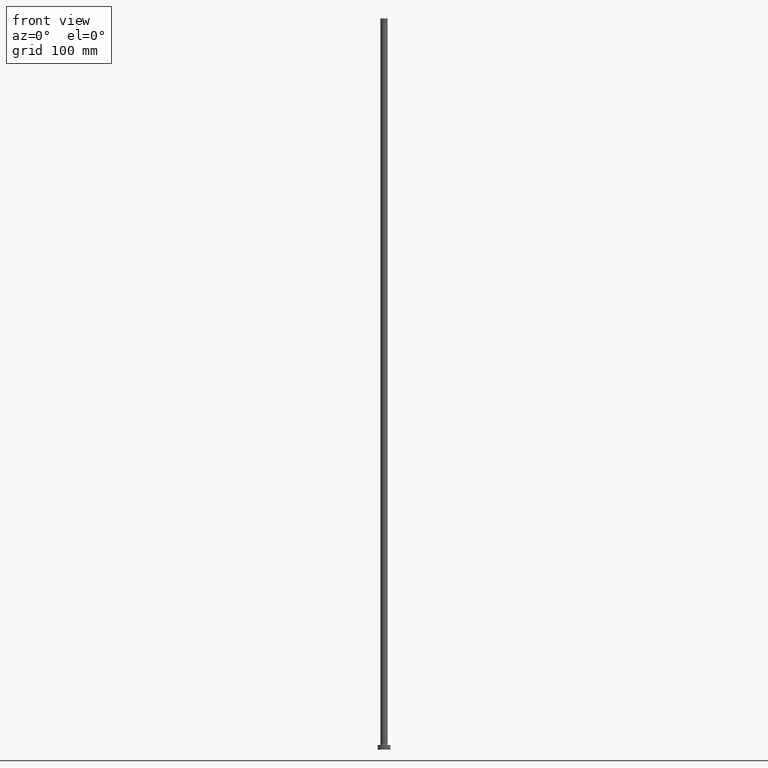
[diagram: clean part render]
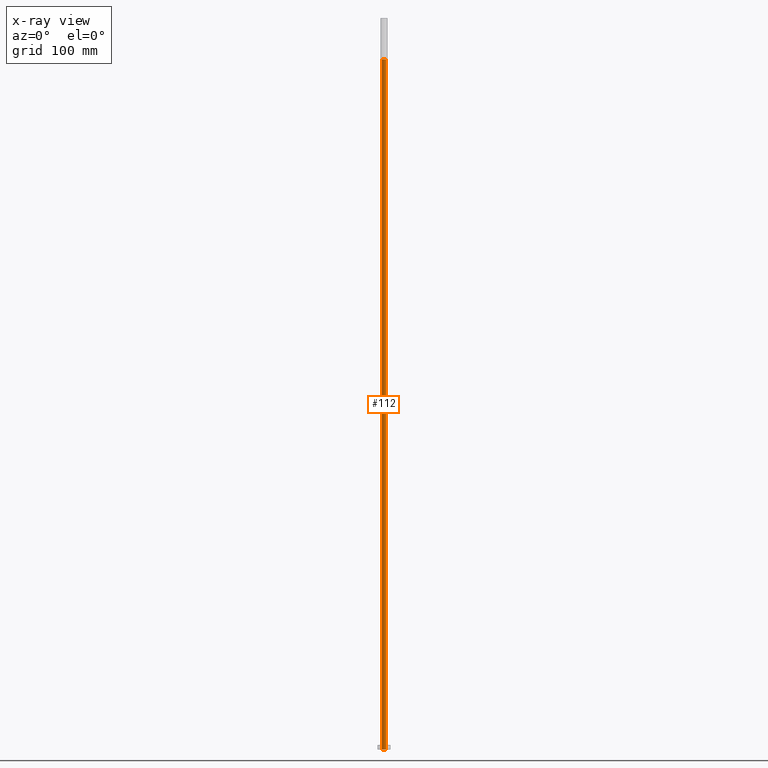
[diagram: x-ray — body ghosted, one internal face saturated and labeled with its STEP entity id]
A machine part, front view, then the same camera in x-ray: the body is ghosted and one INTERNAL B-rep face — a face not visible from any outside direction — is saturated and labeled: STEP entity #112.
In plain terms, the highlighted cylindrical surface (edge-blend (fillet) strip) has radius 2.15 mm, axis along (0, 0, -1).
Its self-contained STEP definition (entity closure, byte-faithful):
#3 = AXIS2_PLACEMENT_3D ( 'NONE', #212, #285, #249 ) ;
#5 = CIRCLE ( 'NONE', #53, 2.149999999999999911 ) ;
#20 = LINE ( 'NONE', #431, #250 ) ;
#28 = VERTEX_POINT ( 'NONE', #207 ) ;
#39 = DIRECTION ( 'NONE',  ( 0.000000000000000000, 0.000000000000000000, -1.000000000000000000 ) ) ;
#42 = CARTESIAN_POINT ( 'NONE',  ( 0.000000000000000000, 0.000000000000000000, 755.0000000000000000 ) ) ;
#47 = DIRECTION ( 'NONE',  ( -1.000000000000000000, 0.000000000000000000, 0.000000000000000000 ) ) ;
#48 = ORIENTED_EDGE ( 'NONE', *, *, #180, .T. ) ;
#53 = AXIS2_PLACEMENT_3D ( 'NONE', #42, #392, #358 ) ;
#102 = DIRECTION ( 'NONE',  ( 0.000000000000000000, 0.000000000000000000, -1.000000000000000000 ) ) ;
#105 = CARTESIAN_POINT ( 'NONE',  ( 2.149999999999999911, 2.632990618166809235E-16, 755.0000000000000000 ) ) ;
#112 = ADVANCED_FACE ( 'NONE', ( #354 ), #146, .F. ) ;
#117 = DIRECTION ( 'NONE',  ( 0.000000000000000000, 0.000000000000000000, -1.000000000000000000 ) ) ;
#121 = ORIENTED_EDGE ( 'NONE', *, *, #277, .F. ) ;
#135 = EDGE_LOOP ( 'NONE', ( #457, #189, #48, #121 ) ) ;
#140 = CARTESIAN_POINT ( 'NONE',  ( -2.149999999999999911, 0.000000000000000000, 755.0000000000000000 ) ) ;
#146 = CYLINDRICAL_SURFACE ( 'NONE', #281, 2.149999999999999911 ) ;
#159 = VECTOR ( 'NONE', #117, 1000.000000000000000 ) ;
#164 = VERTEX_POINT ( 'NONE', #105 ) ;
#180 = EDGE_CURVE ( 'NONE', #28, #230, #197, .T. ) ;
#187 = EDGE_CURVE ( 'NONE', #209, #164, #5, .T. ) ;
#189 = ORIENTED_EDGE ( 'NONE', *, *, #221, .T. ) ;
#191 = CARTESIAN_POINT ( 'NONE',  ( -2.149999999999999911, 0.000000000000000000, 0.000000000000000000 ) ) ;
#197 = CIRCLE ( 'NONE', #3, 2.149999999999999911 ) ;
#207 = CARTESIAN_POINT ( 'NONE',  ( 2.149999999999999911, 2.632990618166809235E-16, 0.000000000000000000 ) ) ;
#209 = VERTEX_POINT ( 'NONE', #140 ) ;
#212 = CARTESIAN_POINT ( 'NONE',  ( 0.000000000000000000, 0.000000000000000000, 0.000000000000000000 ) ) ;
#221 = EDGE_CURVE ( 'NONE', #164, #28, #288, .T. ) ;
#230 = VERTEX_POINT ( 'NONE', #191 ) ;
#249 = DIRECTION ( 'NONE',  ( 1.000000000000000000, 0.000000000000000000, 0.000000000000000000 ) ) ;
#250 = VECTOR ( 'NONE', #39, 1000.000000000000000 ) ;
#277 = EDGE_CURVE ( 'NONE', #209, #230, #20, .T. ) ;
#281 = AXIS2_PLACEMENT_3D ( 'NONE', #426, #102, #47 ) ;
#285 = DIRECTION ( 'NONE',  ( -0.000000000000000000, -0.000000000000000000, -1.000000000000000000 ) ) ;
#288 = LINE ( 'NONE', #333, #159 ) ;
#333 = CARTESIAN_POINT ( 'NONE',  ( 2.149999999999999911, 2.632990618166809235E-16, 761.0811183182044033 ) ) ;
#354 = FACE_OUTER_BOUND ( 'NONE', #135, .T. ) ;
#358 = DIRECTION ( 'NONE',  ( 1.000000000000000000, 0.000000000000000000, 0.000000000000000000 ) ) ;
#392 = DIRECTION ( 'NONE',  ( 0.000000000000000000, 0.000000000000000000, 1.000000000000000000 ) ) ;
#426 = CARTESIAN_POINT ( 'NONE',  ( 0.000000000000000000, 0.000000000000000000, 761.0811183182044033 ) ) ;
#431 = CARTESIAN_POINT ( 'NONE',  ( -2.149999999999999911, 0.000000000000000000, 761.0811183182044033 ) ) ;
#457 = ORIENTED_EDGE ( 'NONE', *, *, #187, .T. ) ;